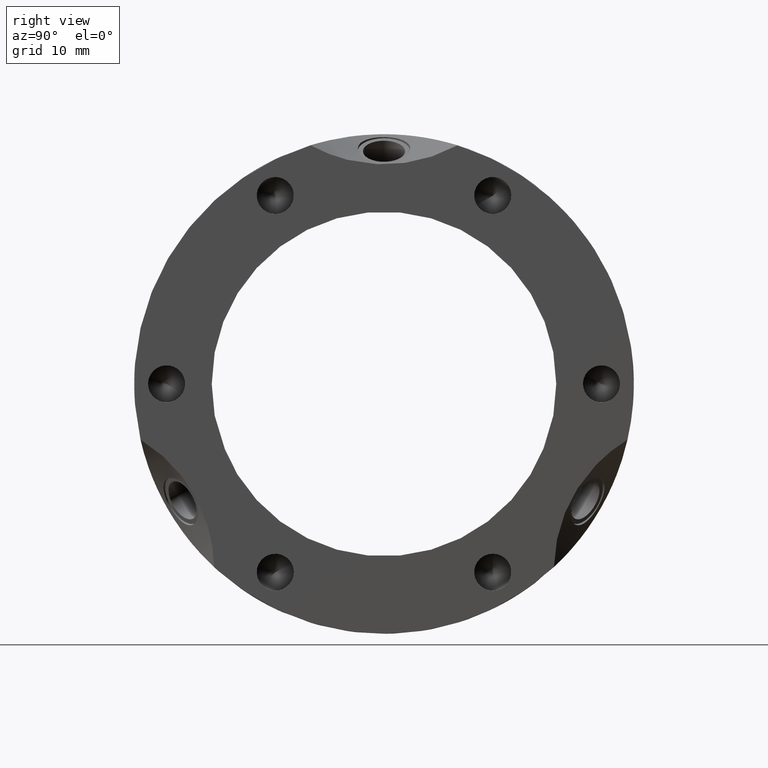
[diagram: clean part render]
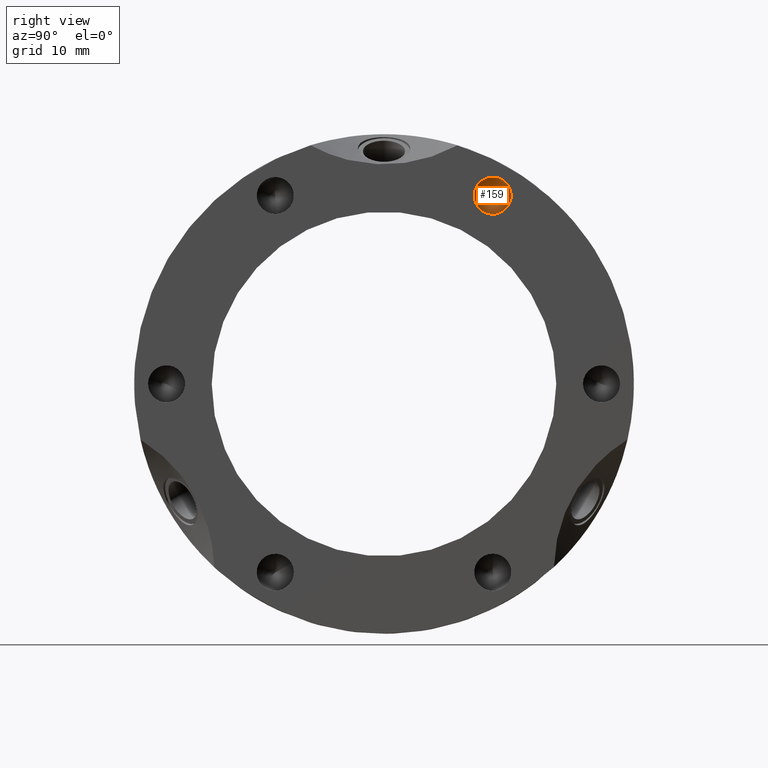
[diagram: same view with one face highlighted and labeled with its STEP entity id]
A machine part, right view. The second image highlights one B-rep face of the part: STEP entity #159.
In plain terms, the highlighted conical surface has half-angle 59 deg.
Its self-contained STEP definition (entity closure, byte-faithful):
#143=CARTESIAN_POINT('',(15.854074834545365,12.625000000000018,21.867141445557085));
#144=DIRECTION('',(1.0,0.0,0.0));
#145=DIRECTION('',(0.0,-0.866025403784439,-0.499999999999999));
#146=AXIS2_PLACEMENT_3D('',#143,#144,#145);
#147=CONICAL_SURFACE('',#146,1.075,59.000000000000021);
#148=CARTESIAN_POINT('',(16.499999999999993,10.763045381863471,20.792141445557085));
#149=VERTEX_POINT('',#148);
#150=CARTESIAN_POINT('',(16.499999999999993,12.625000000000018,21.867141445557085));
#151=DIRECTION('',(1.0,0.0,0.0));
#152=DIRECTION('',(0.0,-0.866025403784439,-0.499999999999999));
#153=AXIS2_PLACEMENT_3D('',#150,#151,#152);
#154=CIRCLE('',#153,2.15);
#155=EDGE_CURVE('',#149,#149,#154,.T.);
#156=ORIENTED_EDGE('',*,*,#155,.T.);
#157=EDGE_LOOP('',(#156));
#158=FACE_OUTER_BOUND('',#157,.T.);
#159=ADVANCED_FACE('',(#158),#147,.F.);